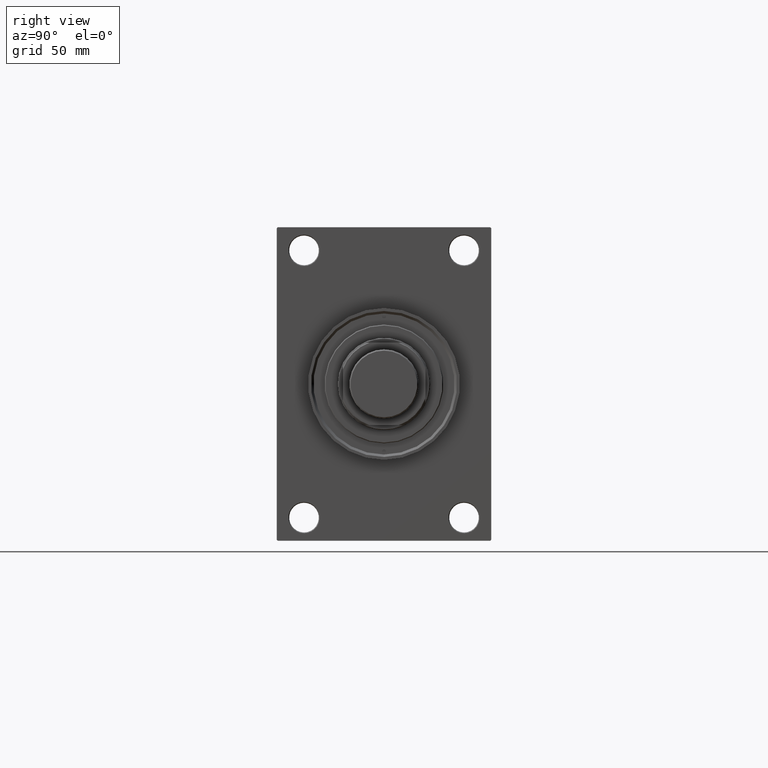
[diagram: clean part render]
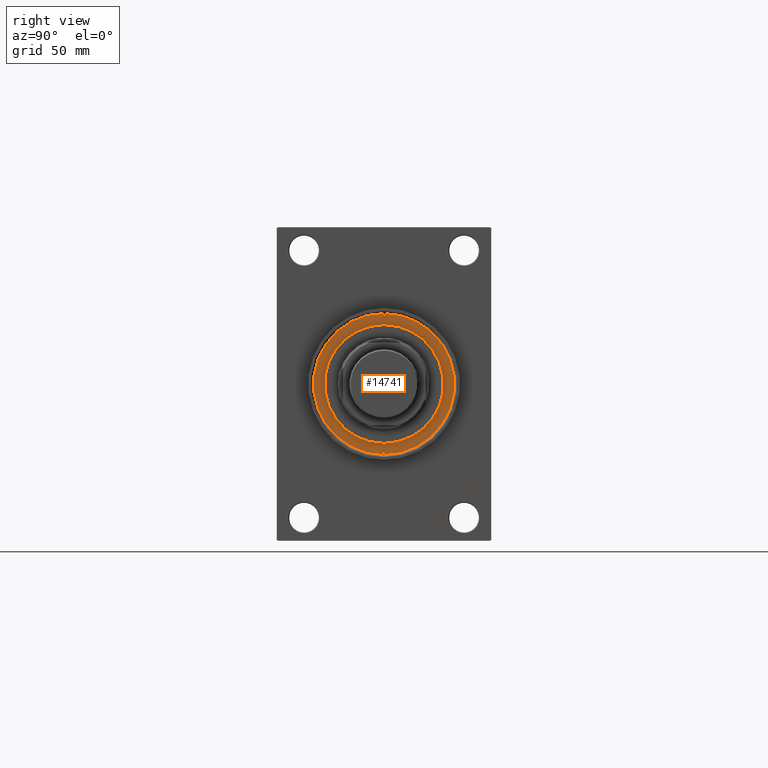
[diagram: same view with one face highlighted and labeled with its STEP entity id]
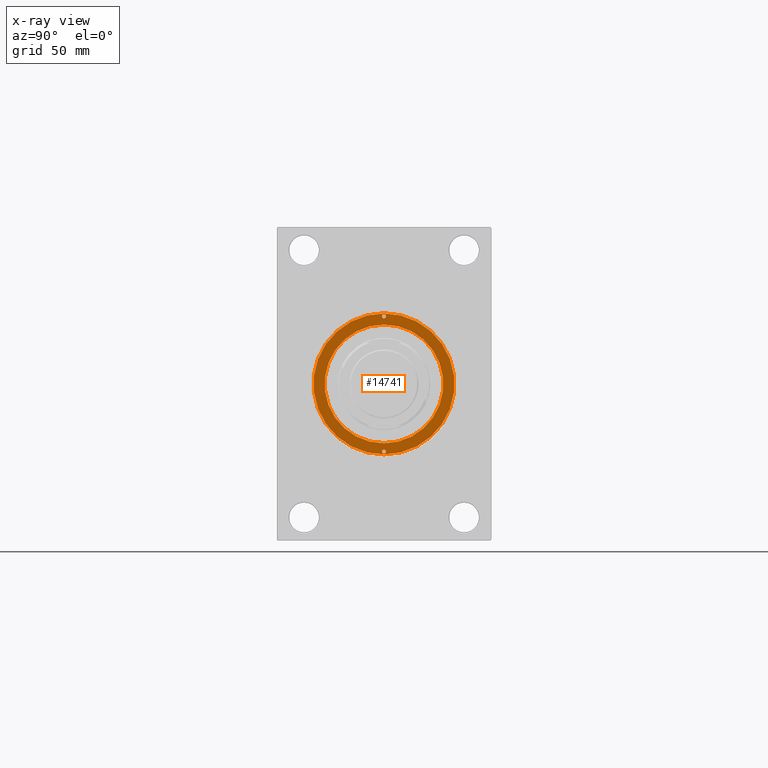
[diagram: x-ray of the same camera — body ghosted, the highlighted face saturated]
A machine part, right view. The second image highlights one B-rep face of the part: STEP entity #14741.
The next image is the same camera in x-ray: the body ghosted, the highlighted face saturated — about 0% of this face is hidden behind the body in this view.
In plain terms, the highlighted planar face has unit normal (1, -0, -0).
Its self-contained STEP definition (entity closure, byte-faithful):
#474 = DIRECTION ( 'NONE',  ( 1.000000000000000000, 0.000000000000000000, 0.000000000000000000 ) ) ;
#1598 = AXIS2_PLACEMENT_3D ( 'NONE', #22294, #38387, #26869 ) ;
#1605 = ORIENTED_EDGE ( 'NONE', *, *, #22706, .F. ) ;
#1996 = CARTESIAN_POINT ( 'NONE',  ( -42.75000000000000000, 0.000000000000000000, 43.25999999999999801 ) ) ;
#2350 = ORIENTED_EDGE ( 'NONE', *, *, #46493, .F. ) ;
#3374 = CARTESIAN_POINT ( 'NONE',  ( 0.000000000000000000, 0.000000000000000000, 43.25999999999999801 ) ) ;
#3524 = PLANE ( 'NONE',  #25783 ) ;
#4834 = AXIS2_PLACEMENT_3D ( 'NONE', #3374, #40355, #17814 ) ;
#5415 = DIRECTION ( 'NONE',  ( -0.000000000000000000, -0.000000000000000000, 1.000000000000000000 ) ) ;
#6196 = DIRECTION ( 'NONE',  ( 1.000000000000000000, 0.000000000000000000, 0.000000000000000000 ) ) ;
#6949 = DIRECTION ( 'NONE',  ( 0.000000000000000000, 0.000000000000000000, 1.000000000000000000 ) ) ;
#7133 = AXIS2_PLACEMENT_3D ( 'NONE', #30718, #8193, #45648 ) ;
#8193 = DIRECTION ( 'NONE',  ( 0.000000000000000000, 0.000000000000000000, 1.000000000000000000 ) ) ;
#8394 = DIRECTION ( 'NONE',  ( 0.000000000000000000, 0.000000000000000000, 1.000000000000000000 ) ) ;
#11063 = ORIENTED_EDGE ( 'NONE', *, *, #18556, .F. ) ;
#11307 = VERTEX_POINT ( 'NONE', #11666 ) ;
#11666 = CARTESIAN_POINT ( 'NONE',  ( 39.75000000000000000, 1.530808498934193050E-16, 43.25999999999999801 ) ) ;
#11826 = DIRECTION ( 'NONE',  ( 0.000000000000000000, 0.000000000000000000, 1.000000000000000000 ) ) ;
#11911 = ORIENTED_EDGE ( 'NONE', *, *, #44354, .F. ) ;
#12080 = CARTESIAN_POINT ( 'NONE',  ( 0.000000000000000000, 0.000000000000000000, 43.25999999999999801 ) ) ;
#12334 = AXIS2_PLACEMENT_3D ( 'NONE', #12080, #8394, #18696 ) ;
#12963 = CIRCLE ( 'NONE', #41872, 1.250000000000001110 ) ;
#13053 = CARTESIAN_POINT ( 'NONE',  ( -41.00000000000000000, 0.000000000000000000, 43.25999999999999801 ) ) ;
#13489 = CARTESIAN_POINT ( 'NONE',  ( -41.00000000000000000, 0.000000000000000000, 43.25999999999999801 ) ) ;
#14633 = VERTEX_POINT ( 'NONE', #27353 ) ;
#14741 = ADVANCED_FACE ( 'NONE', ( #43496, #25800, #40741, #22114 ), #3524, .T. ) ;
#14875 = VERTEX_POINT ( 'NONE', #34335 ) ;
#16835 = ORIENTED_EDGE ( 'NONE', *, *, #39997, .F. ) ;
#17505 = VERTEX_POINT ( 'NONE', #1996 ) ;
#17636 = VERTEX_POINT ( 'NONE', #18613 ) ;
#17814 = DIRECTION ( 'NONE',  ( 1.000000000000000000, 0.000000000000000000, 0.000000000000000000 ) ) ;
#17955 = CIRCLE ( 'NONE', #24206, 1.250000000000001110 ) ;
#18417 = CARTESIAN_POINT ( 'NONE',  ( 42.25000000000000000, 0.000000000000000000, 43.25999999999999801 ) ) ;
#18556 = EDGE_CURVE ( 'NONE', #46615, #31174, #22790, .T. ) ;
#18613 = CARTESIAN_POINT ( 'NONE',  ( -42.25000000000000000, 1.530808498934193050E-16, 43.25999999999999801 ) ) ;
#18696 = DIRECTION ( 'NONE',  ( 1.000000000000000000, 0.000000000000000000, 0.000000000000000000 ) ) ;
#21036 = EDGE_CURVE ( 'NONE', #14875, #17505, #46313, .T. ) ;
#21740 = ORIENTED_EDGE ( 'NONE', *, *, #21036, .T. ) ;
#22114 = FACE_OUTER_BOUND ( 'NONE', #28960, .T. ) ;
#22294 = CARTESIAN_POINT ( 'NONE',  ( 41.00000000000000000, 0.000000000000000000, 43.25999999999999801 ) ) ;
#22706 = EDGE_CURVE ( 'NONE', #14633, #17636, #30657, .T. ) ;
#22790 = CIRCLE ( 'NONE', #4834, 36.00000000000000000 ) ;
#22820 = AXIS2_PLACEMENT_3D ( 'NONE', #13053, #24557, #6196 ) ;
#23577 = ORIENTED_EDGE ( 'NONE', *, *, #47383, .T. ) ;
#23960 = DIRECTION ( 'NONE',  ( -0.000000000000000000, -0.000000000000000000, 1.000000000000000000 ) ) ;
#24206 = AXIS2_PLACEMENT_3D ( 'NONE', #13489, #5415, #24503 ) ;
#24503 = DIRECTION ( 'NONE',  ( 1.000000000000000000, 0.000000000000000000, 0.000000000000000000 ) ) ;
#24557 = DIRECTION ( 'NONE',  ( -0.000000000000000000, -0.000000000000000000, 1.000000000000000000 ) ) ;
#25217 = AXIS2_PLACEMENT_3D ( 'NONE', #30784, #6949, #29471 ) ;
#25783 = AXIS2_PLACEMENT_3D ( 'NONE', #46076, #11826, #27719 ) ;
#25800 = FACE_BOUND ( 'NONE', #29209, .T. ) ;
#26723 = EDGE_LOOP ( 'NONE', ( #16835, #11063 ) ) ;
#26869 = DIRECTION ( 'NONE',  ( 1.000000000000000000, 0.000000000000000000, 0.000000000000000000 ) ) ;
#27353 = CARTESIAN_POINT ( 'NONE',  ( -39.75000000000000000, 0.000000000000000000, 43.25999999999999801 ) ) ;
#27719 = DIRECTION ( 'NONE',  ( 1.000000000000000000, 0.000000000000000000, -0.000000000000000000 ) ) ;
#28960 = EDGE_LOOP ( 'NONE', ( #23577, #21740 ) ) ;
#29008 = CIRCLE ( 'NONE', #7133, 42.75000000000000000 ) ;
#29209 = EDGE_LOOP ( 'NONE', ( #33231, #2350 ) ) ;
#29471 = DIRECTION ( 'NONE',  ( 1.000000000000000000, 0.000000000000000000, 0.000000000000000000 ) ) ;
#30657 = CIRCLE ( 'NONE', #22820, 1.250000000000001110 ) ;
#30718 = CARTESIAN_POINT ( 'NONE',  ( 0.000000000000000000, 0.000000000000000000, 43.25999999999999801 ) ) ;
#30784 = CARTESIAN_POINT ( 'NONE',  ( 0.000000000000000000, 0.000000000000000000, 43.25999999999999801 ) ) ;
#31174 = VERTEX_POINT ( 'NONE', #33059 ) ;
#31313 = CARTESIAN_POINT ( 'NONE',  ( 41.00000000000000000, 0.000000000000000000, 43.25999999999999801 ) ) ;
#31382 = EDGE_CURVE ( 'NONE', #44122, #11307, #12963, .T. ) ;
#32674 = CIRCLE ( 'NONE', #12334, 36.00000000000000000 ) ;
#33059 = CARTESIAN_POINT ( 'NONE',  ( -36.00000000000000000, 0.000000000000000000, 43.25999999999999801 ) ) ;
#33231 = ORIENTED_EDGE ( 'NONE', *, *, #31382, .F. ) ;
#34335 = CARTESIAN_POINT ( 'NONE',  ( 42.75000000000000000, 5.235365066354935472E-15, 43.25999999999999801 ) ) ;
#35217 = CIRCLE ( 'NONE', #1598, 1.250000000000001110 ) ;
#38387 = DIRECTION ( 'NONE',  ( -0.000000000000000000, -0.000000000000000000, 1.000000000000000000 ) ) ;
#39997 = EDGE_CURVE ( 'NONE', #31174, #46615, #32674, .T. ) ;
#40355 = DIRECTION ( 'NONE',  ( 0.000000000000000000, 0.000000000000000000, 1.000000000000000000 ) ) ;
#40466 = EDGE_LOOP ( 'NONE', ( #1605, #11911 ) ) ;
#40741 = FACE_BOUND ( 'NONE', #26723, .T. ) ;
#41257 = CARTESIAN_POINT ( 'NONE',  ( 36.00000000000000000, 4.408728476930470856E-15, 43.25999999999999801 ) ) ;
#41872 = AXIS2_PLACEMENT_3D ( 'NONE', #31313, #23960, #474 ) ;
#43496 = FACE_BOUND ( 'NONE', #40466, .T. ) ;
#44122 = VERTEX_POINT ( 'NONE', #18417 ) ;
#44354 = EDGE_CURVE ( 'NONE', #17636, #14633, #17955, .T. ) ;
#45648 = DIRECTION ( 'NONE',  ( 1.000000000000000000, 0.000000000000000000, 0.000000000000000000 ) ) ;
#46076 = CARTESIAN_POINT ( 'NONE',  ( 0.000000000000000000, 0.000000000000000000, 43.25999999999999801 ) ) ;
#46313 = CIRCLE ( 'NONE', #25217, 42.75000000000000000 ) ;
#46493 = EDGE_CURVE ( 'NONE', #11307, #44122, #35217, .T. ) ;
#46615 = VERTEX_POINT ( 'NONE', #41257 ) ;
#47383 = EDGE_CURVE ( 'NONE', #17505, #14875, #29008, .T. ) ;